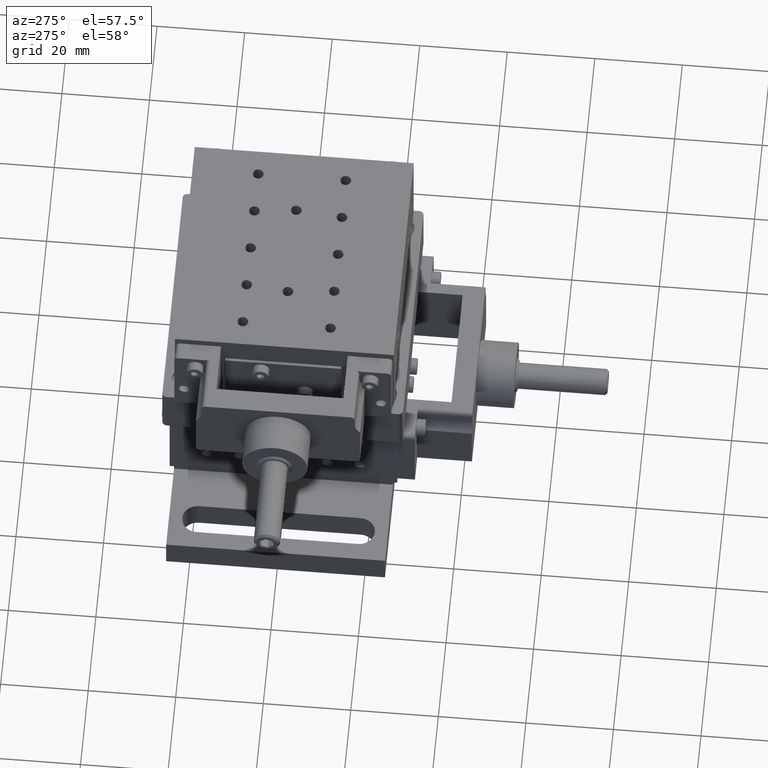
[diagram: clean part render]
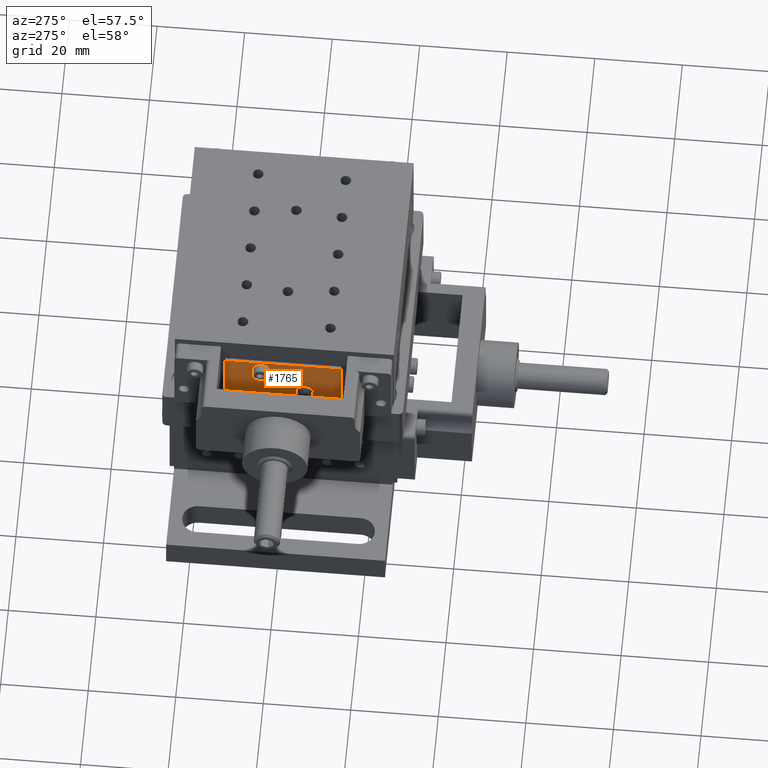
[diagram: same view with one face highlighted and labeled with its STEP entity id]
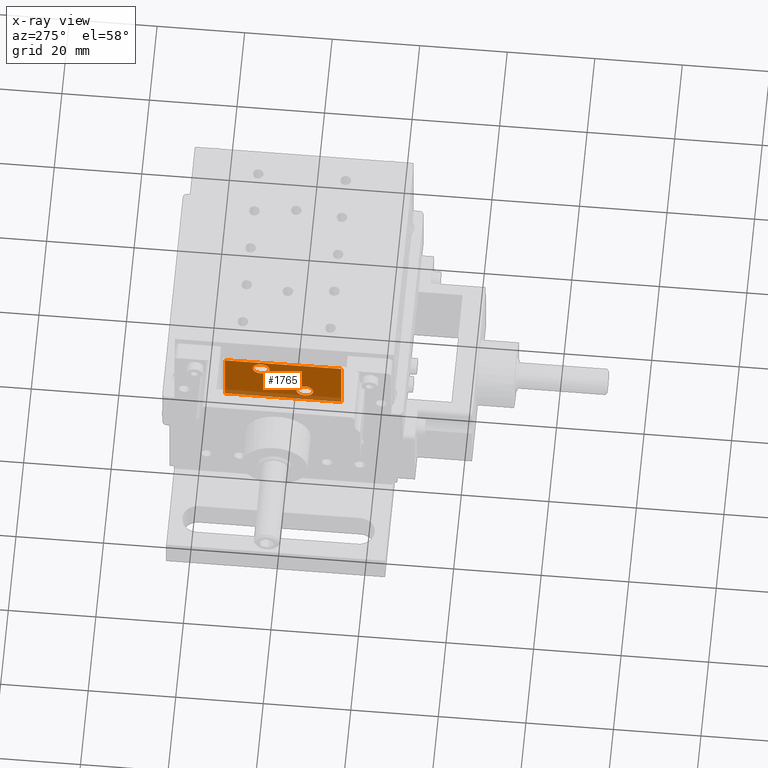
[diagram: x-ray of the same camera — body ghosted, the highlighted face saturated]
A machine part, auxiliary view. The second image highlights one B-rep face of the part: STEP entity #1765.
The next image is the same camera in x-ray: the body ghosted, the highlighted face saturated — about 12% of this face is hidden behind the body in this view.
In plain terms, the highlighted face is a freeform B-spline surface patch.
Its self-contained STEP definition (entity closure, byte-faithful):
#794=FACE_BOUND('',#4308,.T.);
#795=FACE_BOUND('',#4309,.T.);
#1765=ADVANCED_FACE('',(#2949,#794,#795),#38894,.T.);
#2949=FACE_OUTER_BOUND('',#4307,.T.);
#4307=EDGE_LOOP('',(#9261,#9262,#9263,#9264));
#4308=EDGE_LOOP('',(#9265,#9266));
#4309=EDGE_LOOP('',(#9267,#9268));
#9261=ORIENTED_EDGE('',*,*,#33991,.T.);
#9262=ORIENTED_EDGE('',*,*,#33992,.T.);
#9263=ORIENTED_EDGE('',*,*,#33993,.T.);
#9264=ORIENTED_EDGE('',*,*,#33994,.T.);
#9265=ORIENTED_EDGE('',*,*,#33036,.F.);
#9266=ORIENTED_EDGE('',*,*,#33038,.F.);
#9267=ORIENTED_EDGE('',*,*,#33995,.T.);
#9268=ORIENTED_EDGE('',*,*,#33996,.T.);
#13399=PCURVE('',#39221,#19178);
#13401=PCURVE('',#39222,#19180);
#15040=PCURVE('',#38894,#20819);
#15041=PCURVE('',#38894,#20820);
#15042=PCURVE('',#38894,#20821);
#15043=PCURVE('',#38894,#20822);
#15044=PCURVE('',#38894,#20823);
#15045=PCURVE('',#38894,#20824);
#15046=PCURVE('',#38894,#20825);
#15047=PCURVE('',#38894,#20826);
#15048=PCURVE('',#38895,#20827);
#15052=PCURVE('',#38896,#20831);
#15058=PCURVE('',#38897,#20837);
#15062=PCURVE('',#38898,#20841);
#15430=PCURVE('',#39476,#21209);
#15432=PCURVE('',#39477,#21211);
#19178=DEFINITIONAL_REPRESENTATION('',(#25449),#87459);
#19180=DEFINITIONAL_REPRESENTATION('',(#25452),#87459);
#20819=DEFINITIONAL_REPRESENTATION('',(#27432),#87459);
#20820=DEFINITIONAL_REPRESENTATION('',(#27434),#87459);
#20821=DEFINITIONAL_REPRESENTATION('',(#27436),#87459);
#20822=DEFINITIONAL_REPRESENTATION('',(#27438),#87459);
#20823=DEFINITIONAL_REPRESENTATION('',(#36107),#87459);
#20824=DEFINITIONAL_REPRESENTATION('',(#36108),#87459);
#20825=DEFINITIONAL_REPRESENTATION('',(#36110),#87459);
#20826=DEFINITIONAL_REPRESENTATION('',(#36112),#87459);
#20827=DEFINITIONAL_REPRESENTATION('',(#27439),#87459);
#20831=DEFINITIONAL_REPRESENTATION('',(#27446),#87459);
#20837=DEFINITIONAL_REPRESENTATION('',(#27455),#87459);
#20841=DEFINITIONAL_REPRESENTATION('',(#27461),#87459);
#21209=DEFINITIONAL_REPRESENTATION('',(#27821),#87459);
#21211=DEFINITIONAL_REPRESENTATION('',(#27824),#87459);
#25449=B_SPLINE_CURVE_WITH_KNOTS('',1,(#67852,#67853),.UNSPECIFIED.,.F.,
 .F.,(2,2),(-5.96902604182061,0.),.UNSPECIFIED.);
#25452=B_SPLINE_CURVE_WITH_KNOTS('',1,(#67863,#67864),.UNSPECIFIED.,.F.,
 .F.,(2,2),(-5.96902604182061,0.),.UNSPECIFIED.);
#27431=B_SPLINE_CURVE_WITH_KNOTS('',1,(#76391,#76392),.UNSPECIFIED.,.F.,
 .F.,(2,2),(-26.6,0.),.UNSPECIFIED.);
#27432=B_SPLINE_CURVE_WITH_KNOTS('',1,(#76393,#76394),.UNSPECIFIED.,.F.,
 .F.,(2,2),(-26.6,0.),.UNSPECIFIED.);
#27433=B_SPLINE_CURVE_WITH_KNOTS('',1,(#76395,#76396),.UNSPECIFIED.,.F.,
 .F.,(2,2),(-14.,0.),.UNSPECIFIED.);
#27434=B_SPLINE_CURVE_WITH_KNOTS('',1,(#76397,#76398),.UNSPECIFIED.,.F.,
 .F.,(2,2),(-14.,0.),.UNSPECIFIED.);
#27435=B_SPLINE_CURVE_WITH_KNOTS('',1,(#76399,#76400),.UNSPECIFIED.,.F.,
 .F.,(2,2),(-26.6,0.),.UNSPECIFIED.);
#27436=B_SPLINE_CURVE_WITH_KNOTS('',1,(#76401,#76402),.UNSPECIFIED.,.F.,
 .F.,(2,2),(-26.6,0.),.UNSPECIFIED.);
#27437=B_SPLINE_CURVE_WITH_KNOTS('',1,(#76403,#76404),.UNSPECIFIED.,.F.,
 .F.,(2,2),(-14.,0.),.UNSPECIFIED.);
#27438=B_SPLINE_CURVE_WITH_KNOTS('',1,(#76405,#76406),.UNSPECIFIED.,.F.,
 .F.,(2,2),(-14.,0.),.UNSPECIFIED.);
#27439=B_SPLINE_CURVE_WITH_KNOTS('',1,(#76437,#76438),.UNSPECIFIED.,.F.,
 .F.,(2,2),(-14.,0.),.UNSPECIFIED.);
#27446=B_SPLINE_CURVE_WITH_KNOTS('',1,(#76451,#76452),.UNSPECIFIED.,.F.,
 .F.,(2,2),(-26.6,0.),.UNSPECIFIED.);
#27455=B_SPLINE_CURVE_WITH_KNOTS('',1,(#76469,#76470),.UNSPECIFIED.,.F.,
 .F.,(2,2),(-14.,0.),.UNSPECIFIED.);
#27461=B_SPLINE_CURVE_WITH_KNOTS('',1,(#76481,#76482),.UNSPECIFIED.,.F.,
 .F.,(2,2),(-26.6,0.),.UNSPECIFIED.);
#27821=B_SPLINE_CURVE_WITH_KNOTS('',1,(#78031,#78032),.UNSPECIFIED.,.F.,
 .F.,(2,2),(0.,5.96902604182061),.UNSPECIFIED.);
#27824=B_SPLINE_CURVE_WITH_KNOTS('',1,(#78037,#78038),.UNSPECIFIED.,.F.,
 .F.,(2,2),(0.,5.96902604182061),.UNSPECIFIED.);
#30087=SURFACE_CURVE('',#35493,(#13399,#15044),.PCURVE_S1.);
#30089=SURFACE_CURVE('',#35494,(#13401,#15045),.PCURVE_S1.);
#31042=SURFACE_CURVE('',#27431,(#15040,#15062),.PCURVE_S1.);
#31043=SURFACE_CURVE('',#27433,(#15041,#15048),.PCURVE_S1.);
#31044=SURFACE_CURVE('',#27435,(#15042,#15052),.PCURVE_S1.);
#31045=SURFACE_CURVE('',#27437,(#15043,#15058),.PCURVE_S1.);
#31046=SURFACE_CURVE('',#36109,(#15046,#15430),.PCURVE_S1.);
#31047=SURFACE_CURVE('',#36111,(#15047,#15432),.PCURVE_S1.);
#33036=EDGE_CURVE('',#37576,#37575,#30087,.T.);
#33038=EDGE_CURVE('',#37575,#37576,#30089,.T.);
#33991=EDGE_CURVE('',#38150,#38151,#31042,.T.);
#33992=EDGE_CURVE('',#38151,#38152,#31043,.T.);
#33993=EDGE_CURVE('',#38152,#38153,#31044,.T.);
#33994=EDGE_CURVE('',#38153,#38150,#31045,.T.);
#33995=EDGE_CURVE('',#38155,#38154,#31046,.T.);
#33996=EDGE_CURVE('',#38154,#38155,#31047,.T.);
#35493=(
BOUNDED_CURVE()
B_SPLINE_CURVE(2,(#67847,#67848,#67849,#67850,#67851),.UNSPECIFIED.,.F.,
 .F.)
B_SPLINE_CURVE_WITH_KNOTS((3,2,3),(-5.96902604182061,-2.9845130209103,0.),
 .UNSPECIFIED.)
CURVE()
GEOMETRIC_REPRESENTATION_ITEM()
RATIONAL_B_SPLINE_CURVE((1.,0.707106781186548,1.,0.707106781186548,1.))
REPRESENTATION_ITEM('')
);
#35494=(
BOUNDED_CURVE()
B_SPLINE_CURVE(2,(#67858,#67859,#67860,#67861,#67862),.UNSPECIFIED.,.F.,
 .F.)
B_SPLINE_CURVE_WITH_KNOTS((3,2,3),(-5.96902604182061,-2.9845130209103,0.),
 .UNSPECIFIED.)
CURVE()
GEOMETRIC_REPRESENTATION_ITEM()
RATIONAL_B_SPLINE_CURVE((1.,0.707106781186548,1.,0.707106781186548,1.))
REPRESENTATION_ITEM('')
);
#36107=(
BOUNDED_CURVE()
B_SPLINE_CURVE(2,(#76407,#76408,#76409,#76410,#76411),.UNSPECIFIED.,.F.,
 .F.)
B_SPLINE_CURVE_WITH_KNOTS((3,2,3),(-5.96902604182061,-2.9845130209103,0.),
 .UNSPECIFIED.)
CURVE()
GEOMETRIC_REPRESENTATION_ITEM()
RATIONAL_B_SPLINE_CURVE((1.,0.707106781186548,1.,0.707106781186548,1.))
REPRESENTATION_ITEM('')
);
#36108=(
BOUNDED_CURVE()
B_SPLINE_CURVE(2,(#76412,#76413,#76414,#76415,#76416),.UNSPECIFIED.,.F.,
 .F.)
B_SPLINE_CURVE_WITH_KNOTS((3,2,3),(-5.96902604182061,-2.9845130209103,0.),
 .UNSPECIFIED.)
CURVE()
GEOMETRIC_REPRESENTATION_ITEM()
RATIONAL_B_SPLINE_CURVE((1.,0.707106781186548,1.,0.707106781186548,1.))
REPRESENTATION_ITEM('')
);
#36109=(
BOUNDED_CURVE()
B_SPLINE_CURVE(2,(#76417,#76418,#76419,#76420,#76421),.UNSPECIFIED.,.F.,
 .F.)
B_SPLINE_CURVE_WITH_KNOTS((3,2,3),(0.,2.9845130209103,5.96902604182061),
 .UNSPECIFIED.)
CURVE()
GEOMETRIC_REPRESENTATION_ITEM()
RATIONAL_B_SPLINE_CURVE((1.,0.707106781186548,1.,0.707106781186548,1.))
REPRESENTATION_ITEM('')
);
#36110=(
BOUNDED_CURVE()
B_SPLINE_CURVE(2,(#76422,#76423,#76424,#76425,#76426),.UNSPECIFIED.,.F.,
 .F.)
B_SPLINE_CURVE_WITH_KNOTS((3,2,3),(0.,2.9845130209103,5.96902604182061),
 .UNSPECIFIED.)
CURVE()
GEOMETRIC_REPRESENTATION_ITEM()
RATIONAL_B_SPLINE_CURVE((1.,0.707106781186548,1.,0.707106781186548,1.))
REPRESENTATION_ITEM('')
);
#36111=(
BOUNDED_CURVE()
B_SPLINE_CURVE(2,(#76427,#76428,#76429,#76430,#76431),.UNSPECIFIED.,.F.,
 .F.)
B_SPLINE_CURVE_WITH_KNOTS((3,2,3),(0.,2.9845130209103,5.96902604182061),
 .UNSPECIFIED.)
CURVE()
GEOMETRIC_REPRESENTATION_ITEM()
RATIONAL_B_SPLINE_CURVE((1.,0.707106781186548,1.,0.707106781186548,1.))
REPRESENTATION_ITEM('')
);
#36112=(
BOUNDED_CURVE()
B_SPLINE_CURVE(2,(#76432,#76433,#76434,#76435,#76436),.UNSPECIFIED.,.F.,
 .F.)
B_SPLINE_CURVE_WITH_KNOTS((3,2,3),(0.,2.9845130209103,5.96902604182061),
 .UNSPECIFIED.)
CURVE()
GEOMETRIC_REPRESENTATION_ITEM()
RATIONAL_B_SPLINE_CURVE((1.,0.707106781186548,1.,0.707106781186548,1.))
REPRESENTATION_ITEM('')
);
#37575=VERTEX_POINT('',#67060);
#37576=VERTEX_POINT('',#67061);
#38150=VERTEX_POINT('',#67635);
#38151=VERTEX_POINT('',#67636);
#38152=VERTEX_POINT('',#67637);
#38153=VERTEX_POINT('',#67638);
#38154=VERTEX_POINT('',#67639);
#38155=VERTEX_POINT('',#67640);
#38894=B_SPLINE_SURFACE_WITH_KNOTS('',1,1,((#65351,#65352),(#65353,#65354)),
 .UNSPECIFIED.,.F.,.F.,.F.,(2,2),(2,2),(-16.08,16.08),(-8.52000000000001,
8.52000000000001),.UNSPECIFIED.);
#38895=B_SPLINE_SURFACE_WITH_KNOTS('',1,1,((#65355,#65356),(#65357,#65358)),
 .UNSPECIFIED.,.F.,.F.,.F.,(2,2),(2,2),(-0.220000000000008,1.22),(-1.52,
15.52),.UNSPECIFIED.);
#38896=B_SPLINE_SURFACE_WITH_KNOTS('',1,1,((#65359,#65360),(#65361,#65362)),
 .UNSPECIFIED.,.F.,.F.,.F.,(2,2),(2,2),(-1.22000000000011,0.220000000000045),
(-29.38,2.78),.UNSPECIFIED.);
#38897=B_SPLINE_SURFACE_WITH_KNOTS('',1,1,((#65363,#65364),(#65365,#65366)),
 .UNSPECIFIED.,.F.,.F.,.F.,(2,2),(2,2),(-1.22000000000001,0.220000000000002),
(-15.52,1.52),.UNSPECIFIED.);
#38898=B_SPLINE_SURFACE_WITH_KNOTS('',1,1,((#65367,#65368),(#65369,#65370)),
 .UNSPECIFIED.,.F.,.F.,.F.,(2,2),(2,2),(-0.220000000000114,1.22000000000005),
(-2.78,29.38),.UNSPECIFIED.);
#39221=(
BOUNDED_SURFACE()
B_SPLINE_SURFACE(2,1,((#61591,#61592),(#61593,#61594),(#61595,#61596),(#61597,
#61598),(#61599,#61600),(#61601,#61602),(#61603,#61604),(#61605,#61606),
(#61607,#61608)),.UNSPECIFIED.,.T.,.F.,.F.)
B_SPLINE_SURFACE_WITH_KNOTS((3,2,2,2,3),(2,2),(0.,1.5707963267949,3.14159265358979,
4.71238898038469,6.28318530717959),(0.,2.40000000000003),.UNSPECIFIED.)
GEOMETRIC_REPRESENTATION_ITEM()
RATIONAL_B_SPLINE_SURFACE(((1.,1.),(0.707106781186548,0.707106781186548),
(1.,1.),(0.707106781186548,0.707106781186548),(1.,1.),(0.707106781186548,
0.707106781186548),(1.,1.),(0.707106781186548,0.707106781186548),(1.,1.)))
REPRESENTATION_ITEM('')
SURFACE()
);
#39222=(
BOUNDED_SURFACE()
B_SPLINE_SURFACE(2,1,((#61609,#61610),(#61611,#61612),(#61613,#61614),(#61615,
#61616),(#61617,#61618),(#61619,#61620),(#61621,#61622),(#61623,#61624),
(#61625,#61626)),.UNSPECIFIED.,.T.,.F.,.F.)
B_SPLINE_SURFACE_WITH_KNOTS((3,2,2,2,3),(2,2),(0.,1.5707963267949,3.14159265358979,
4.71238898038469,6.28318530717959),(0.,2.40000000000003),.UNSPECIFIED.)
GEOMETRIC_REPRESENTATION_ITEM()
RATIONAL_B_SPLINE_SURFACE(((1.,1.),(0.707106781186548,0.707106781186548),
(1.,1.),(0.707106781186548,0.707106781186548),(1.,1.),(0.707106781186548,
0.707106781186548),(1.,1.),(0.707106781186548,0.707106781186548),(1.,1.)))
REPRESENTATION_ITEM('')
SURFACE()
);
#39476=(
BOUNDED_SURFACE()
B_SPLINE_SURFACE(2,1,((#66609,#66610),(#66611,#66612),(#66613,#66614),(#66615,
#66616),(#66617,#66618),(#66619,#66620),(#66621,#66622),(#66623,#66624),
(#66625,#66626)),.UNSPECIFIED.,.T.,.F.,.F.)
B_SPLINE_SURFACE_WITH_KNOTS((3,2,2,2,3),(2,2),(0.,1.5707963267949,3.14159265358979,
4.71238898038469,6.28318530717959),(0.,2.40000000000061),.UNSPECIFIED.)
GEOMETRIC_REPRESENTATION_ITEM()
RATIONAL_B_SPLINE_SURFACE(((1.,1.),(0.707106781186548,0.707106781186548),
(1.,1.),(0.707106781186548,0.707106781186548),(1.,1.),(0.707106781186548,
0.707106781186548),(1.,1.),(0.707106781186548,0.707106781186548),(1.,1.)))
REPRESENTATION_ITEM('')
SURFACE()
);
#39477=(
BOUNDED_SURFACE()
B_SPLINE_SURFACE(2,1,((#66627,#66628),(#66629,#66630),(#66631,#66632),(#66633,
#66634),(#66635,#66636),(#66637,#66638),(#66639,#66640),(#66641,#66642),
(#66643,#66644)),.UNSPECIFIED.,.T.,.F.,.F.)
B_SPLINE_SURFACE_WITH_KNOTS((3,2,2,2,3),(2,2),(0.,1.5707963267949,3.14159265358979,
4.71238898038469,6.28318530717959),(0.,2.40000000000061),.UNSPECIFIED.)
GEOMETRIC_REPRESENTATION_ITEM()
RATIONAL_B_SPLINE_SURFACE(((1.,1.),(0.707106781186548,0.707106781186548),
(1.,1.),(0.707106781186548,0.707106781186548),(1.,1.),(0.707106781186548,
0.707106781186548),(1.,1.),(0.707106781186548,0.707106781186548),(1.,1.)))
REPRESENTATION_ITEM('')
SURFACE()
);
#61591=CARTESIAN_POINT('',(-28.0164528104949,3.32607756823776,54.5190559995546));
#61592=CARTESIAN_POINT('',(-25.6164528104949,3.32607756823775,54.5190559995546));
#61593=CARTESIAN_POINT('',(-28.0164528104949,3.32607756823776,52.6190559995546));
#61594=CARTESIAN_POINT('',(-25.6164528104949,3.32607756823775,52.6190559995546));
#61595=CARTESIAN_POINT('',(-28.0164528104949,5.22607756823776,52.6190559995546));
#61596=CARTESIAN_POINT('',(-25.6164528104949,5.22607756823775,52.6190559995546));
#61597=CARTESIAN_POINT('',(-28.0164528104949,7.12607756823776,52.6190559995546));
#61598=CARTESIAN_POINT('',(-25.6164528104949,7.12607756823775,52.6190559995546));
#61599=CARTESIAN_POINT('',(-28.0164528104949,7.12607756823776,54.5190559995546));
#61600=CARTESIAN_POINT('',(-25.6164528104949,7.12607756823775,54.5190559995546));
#61601=CARTESIAN_POINT('',(-28.0164528104949,7.12607756823776,56.4190559995546));
#61602=CARTESIAN_POINT('',(-25.6164528104949,7.12607756823775,56.4190559995546));
#61603=CARTESIAN_POINT('',(-28.0164528104949,5.22607756823776,56.4190559995546));
#61604=CARTESIAN_POINT('',(-25.6164528104949,5.22607756823775,56.4190559995546));
#61605=CARTESIAN_POINT('',(-28.0164528104949,3.32607756823776,56.4190559995546));
#61606=CARTESIAN_POINT('',(-25.6164528104949,3.32607756823775,56.4190559995546));
#61607=CARTESIAN_POINT('',(-28.0164528104949,3.32607756823776,54.5190559995546));
#61608=CARTESIAN_POINT('',(-25.6164528104949,3.32607756823775,54.5190559995546));
#61609=CARTESIAN_POINT('',(-28.0164528104949,3.32607756823776,54.5190559995546));
#61610=CARTESIAN_POINT('',(-25.6164528104949,3.32607756823775,54.5190559995546));
#61611=CARTESIAN_POINT('',(-28.0164528104949,3.32607756823776,52.6190559995546));
#61612=CARTESIAN_POINT('',(-25.6164528104949,3.32607756823775,52.6190559995546));
#61613=CARTESIAN_POINT('',(-28.0164528104949,5.22607756823776,52.6190559995546));
#61614=CARTESIAN_POINT('',(-25.6164528104949,5.22607756823775,52.6190559995546));
#61615=CARTESIAN_POINT('',(-28.0164528104949,7.12607756823776,52.6190559995546));
#61616=CARTESIAN_POINT('',(-25.6164528104949,7.12607756823775,52.6190559995546));
#61617=CARTESIAN_POINT('',(-28.0164528104949,7.12607756823776,54.5190559995546));
#61618=CARTESIAN_POINT('',(-25.6164528104949,7.12607756823775,54.5190559995546));
#61619=CARTESIAN_POINT('',(-28.0164528104949,7.12607756823776,56.4190559995546));
#61620=CARTESIAN_POINT('',(-25.6164528104949,7.12607756823775,56.4190559995546));
#61621=CARTESIAN_POINT('',(-28.0164528104949,5.22607756823776,56.4190559995546));
#61622=CARTESIAN_POINT('',(-25.6164528104949,5.22607756823775,56.4190559995546));
#61623=CARTESIAN_POINT('',(-28.0164528104949,3.32607756823776,56.4190559995546));
#61624=CARTESIAN_POINT('',(-25.6164528104949,3.32607756823775,56.4190559995546));
#61625=CARTESIAN_POINT('',(-28.0164528104949,3.32607756823776,54.5190559995546));
#61626=CARTESIAN_POINT('',(-25.6164528104949,3.32607756823775,54.5190559995546));
#65351=CARTESIAN_POINT('',(-25.9164528104949,-15.8539224317623,58.5390559995546));
#65352=CARTESIAN_POINT('',(-25.9164528104949,-15.8539224317622,41.4990559995546));
#65353=CARTESIAN_POINT('',(-25.9164528104949,16.3060775682378,58.5390559995546));
#65354=CARTESIAN_POINT('',(-25.9164528104949,16.3060775682378,41.4990559995546));
#65355=CARTESIAN_POINT('',(-24.696452810495,-13.0739224317622,58.5390559995546));
#65356=CARTESIAN_POINT('',(-24.696452810495,-13.0739224317622,41.4990559995546));
#65357=CARTESIAN_POINT('',(-26.136452810495,-13.0739224317622,58.5390559995546));
#65358=CARTESIAN_POINT('',(-26.136452810495,-13.0739224317622,41.4990559995546));
#65359=CARTESIAN_POINT('',(-26.1364528104951,-15.8539224317622,57.0190559995546));
#65360=CARTESIAN_POINT('',(-26.136452810495,16.3060775682377,57.0190559995546));
#65361=CARTESIAN_POINT('',(-24.6964528104949,-15.8539224317622,57.0190559995546));
#65362=CARTESIAN_POINT('',(-24.6964528104949,16.3060775682377,57.0190559995546));
#65363=CARTESIAN_POINT('',(-26.1364528104949,13.5260775682377,58.5390559995546));
#65364=CARTESIAN_POINT('',(-26.1364528104949,13.5260775682378,41.4990559995546));
#65365=CARTESIAN_POINT('',(-24.6964528104949,13.5260775682377,58.5390559995546));
#65366=CARTESIAN_POINT('',(-24.6964528104949,13.5260775682378,41.4990559995546));
#65367=CARTESIAN_POINT('',(-24.6964528104949,-15.8539224317622,43.0190559995546));
#65368=CARTESIAN_POINT('',(-24.6964528104949,16.3060775682378,43.0190559995546));
#65369=CARTESIAN_POINT('',(-26.1364528104951,-15.8539224317622,43.0190559995546));
#65370=CARTESIAN_POINT('',(-26.136452810495,16.3060775682378,43.0190559995546));
#66609=CARTESIAN_POINT('',(-28.0164528104955,-6.67392243176145,46.5190559995517));
#66610=CARTESIAN_POINT('',(-25.6164528104948,-6.67392243176145,46.5190559995517));
#66611=CARTESIAN_POINT('',(-28.0164528104955,-6.67392243176145,44.6190559995517));
#66612=CARTESIAN_POINT('',(-25.6164528104948,-6.67392243176145,44.6190559995517));
#66613=CARTESIAN_POINT('',(-28.0164528104955,-4.77392243176145,44.6190559995517));
#66614=CARTESIAN_POINT('',(-25.6164528104948,-4.77392243176145,44.6190559995517));
#66615=CARTESIAN_POINT('',(-28.0164528104955,-2.87392243176145,44.6190559995517));
#66616=CARTESIAN_POINT('',(-25.6164528104948,-2.87392243176145,44.6190559995517));
#66617=CARTESIAN_POINT('',(-28.0164528104955,-2.87392243176145,46.5190559995517));
#66618=CARTESIAN_POINT('',(-25.6164528104948,-2.87392243176145,46.5190559995517));
#66619=CARTESIAN_POINT('',(-28.0164528104955,-2.87392243176145,48.4190559995517));
#66620=CARTESIAN_POINT('',(-25.6164528104948,-2.87392243176145,48.4190559995517));
#66621=CARTESIAN_POINT('',(-28.0164528104955,-4.77392243176145,48.4190559995517));
#66622=CARTESIAN_POINT('',(-25.6164528104948,-4.77392243176145,48.4190559995517));
#66623=CARTESIAN_POINT('',(-28.0164528104955,-6.67392243176145,48.4190559995517));
#66624=CARTESIAN_POINT('',(-25.6164528104948,-6.67392243176145,48.4190559995517));
#66625=CARTESIAN_POINT('',(-28.0164528104955,-6.67392243176145,46.5190559995517));
#66626=CARTESIAN_POINT('',(-25.6164528104948,-6.67392243176145,46.5190559995517));
#66627=CARTESIAN_POINT('',(-28.0164528104955,-6.67392243176145,46.5190559995517));
#66628=CARTESIAN_POINT('',(-25.6164528104948,-6.67392243176145,46.5190559995517));
#66629=CARTESIAN_POINT('',(-28.0164528104955,-6.67392243176145,44.6190559995517));
#66630=CARTESIAN_POINT('',(-25.6164528104948,-6.67392243176145,44.6190559995517));
#66631=CARTESIAN_POINT('',(-28.0164528104955,-4.77392243176145,44.6190559995517));
#66632=CARTESIAN_POINT('',(-25.6164528104948,-4.77392243176145,44.6190559995517));
#66633=CARTESIAN_POINT('',(-28.0164528104955,-2.87392243176145,44.6190559995517));
#66634=CARTESIAN_POINT('',(-25.6164528104948,-2.87392243176145,44.6190559995517));
#66635=CARTESIAN_POINT('',(-28.0164528104955,-2.87392243176145,46.5190559995517));
#66636=CARTESIAN_POINT('',(-25.6164528104948,-2.87392243176145,46.5190559995517));
#66637=CARTESIAN_POINT('',(-28.0164528104955,-2.87392243176145,48.4190559995517));
#66638=CARTESIAN_POINT('',(-25.6164528104948,-2.87392243176145,48.4190559995517));
#66639=CARTESIAN_POINT('',(-28.0164528104955,-4.77392243176145,48.4190559995517));
#66640=CARTESIAN_POINT('',(-25.6164528104948,-4.77392243176145,48.4190559995517));
#66641=CARTESIAN_POINT('',(-28.0164528104955,-6.67392243176145,48.4190559995517));
#66642=CARTESIAN_POINT('',(-25.6164528104948,-6.67392243176145,48.4190559995517));
#66643=CARTESIAN_POINT('',(-28.0164528104955,-6.67392243176145,46.5190559995517));
#66644=CARTESIAN_POINT('',(-25.6164528104948,-6.67392243176145,46.5190559995517));
#67060=CARTESIAN_POINT('',(-25.9164528104949,7.12607756823775,54.5190559995546));
#67061=CARTESIAN_POINT('',(-25.9164528104949,3.32607756823775,54.5190559995546));
#67635=CARTESIAN_POINT('',(-25.9164528104949,13.5260775682378,43.0190559995546));
#67636=CARTESIAN_POINT('',(-25.916452810495,-13.0739224317622,43.0190559995546));
#67637=CARTESIAN_POINT('',(-25.916452810495,-13.0739224317622,57.0190559995546));
#67638=CARTESIAN_POINT('',(-25.9164528104949,13.5260775682377,57.0190559995546));
#67639=CARTESIAN_POINT('',(-25.9164528104949,-6.67392243176145,46.5190559995517));
#67640=CARTESIAN_POINT('',(-25.9164528104949,-2.87392243176145,46.5190559995517));
#67847=CARTESIAN_POINT('',(-25.9164528104949,3.32607756823775,54.5190559995546));
#67848=CARTESIAN_POINT('',(-25.9164528104949,3.32607756823775,56.4190559995546));
#67849=CARTESIAN_POINT('',(-25.9164528104949,5.22607756823775,56.4190559995546));
#67850=CARTESIAN_POINT('',(-25.9164528104949,7.12607756823775,56.4190559995546));
#67851=CARTESIAN_POINT('',(-25.9164528104949,7.12607756823775,54.5190559995546));
#67852=CARTESIAN_POINT('',(6.28318530717959,2.10000000000003));
#67853=CARTESIAN_POINT('',(3.14159265358979,2.10000000000002));
#67858=CARTESIAN_POINT('',(-25.9164528104949,7.12607756823775,54.5190559995546));
#67859=CARTESIAN_POINT('',(-25.9164528104949,7.12607756823775,52.6190559995546));
#67860=CARTESIAN_POINT('',(-25.9164528104949,5.22607756823775,52.6190559995546));
#67861=CARTESIAN_POINT('',(-25.9164528104949,3.32607756823775,52.6190559995546));
#67862=CARTESIAN_POINT('',(-25.9164528104949,3.32607756823775,54.5190559995546));
#67863=CARTESIAN_POINT('',(3.14159265358979,2.10000000000002));
#67864=CARTESIAN_POINT('',(0.,2.10000000000003));
#76391=CARTESIAN_POINT('',(-25.9164528104949,13.5260775682378,43.0190559995546));
#76392=CARTESIAN_POINT('',(-25.916452810495,-13.0739224317622,43.0190559995546));
#76393=CARTESIAN_POINT('',(13.3,7.00000000000001));
#76394=CARTESIAN_POINT('',(-13.3,6.99999999999999));
#76395=CARTESIAN_POINT('',(-25.916452810495,-13.0739224317622,43.0190559995546));
#76396=CARTESIAN_POINT('',(-25.916452810495,-13.0739224317622,57.0190559995546));
#76397=CARTESIAN_POINT('',(-13.3,6.99999999999999));
#76398=CARTESIAN_POINT('',(-13.3,-7.00000000000001));
#76399=CARTESIAN_POINT('',(-25.916452810495,-13.0739224317622,57.0190559995546));
#76400=CARTESIAN_POINT('',(-25.9164528104949,13.5260775682377,57.0190559995546));
#76401=CARTESIAN_POINT('',(-13.3,-7.00000000000001));
#76402=CARTESIAN_POINT('',(13.3,-6.99999999999999));
#76403=CARTESIAN_POINT('',(-25.9164528104949,13.5260775682377,57.0190559995546));
#76404=CARTESIAN_POINT('',(-25.9164528104949,13.5260775682378,43.0190559995546));
#76405=CARTESIAN_POINT('',(13.3,-6.99999999999999));
#76406=CARTESIAN_POINT('',(13.3,7.00000000000001));
#76407=CARTESIAN_POINT('',(3.1,-4.5));
#76408=CARTESIAN_POINT('',(3.10000000000001,-6.4));
#76409=CARTESIAN_POINT('',(5.00000000000001,-6.39999999999999));
#76410=CARTESIAN_POINT('',(6.9,-6.4));
#76411=CARTESIAN_POINT('',(6.9,-4.5));
#76412=CARTESIAN_POINT('',(6.9,-4.5));
#76413=CARTESIAN_POINT('',(6.9,-2.59999999999999));
#76414=CARTESIAN_POINT('',(5.,-2.59999999999999));
#76415=CARTESIAN_POINT('',(3.1,-2.59999999999999));
#76416=CARTESIAN_POINT('',(3.1,-4.5));
#76417=CARTESIAN_POINT('',(-25.9164528104949,-2.87392243176145,46.5190559995517));
#76418=CARTESIAN_POINT('',(-25.9164528104949,-2.87392243176145,48.4190559995517));
#76419=CARTESIAN_POINT('',(-25.9164528104949,-4.77392243176145,48.4190559995517));
#76420=CARTESIAN_POINT('',(-25.9164528104949,-6.67392243176145,48.4190559995517));
#76421=CARTESIAN_POINT('',(-25.9164528104949,-6.67392243176145,46.5190559995517));
#76422=CARTESIAN_POINT('',(-3.0999999999992,3.5000000000029));
#76423=CARTESIAN_POINT('',(-3.0999999999992,1.60000000000291));
#76424=CARTESIAN_POINT('',(-4.9999999999992,1.60000000000291));
#76425=CARTESIAN_POINT('',(-6.8999999999992,1.60000000000291));
#76426=CARTESIAN_POINT('',(-6.8999999999992,3.5000000000029));
#76427=CARTESIAN_POINT('',(-25.9164528104949,-6.67392243176145,46.5190559995517));
#76428=CARTESIAN_POINT('',(-25.9164528104949,-6.67392243176145,44.6190559995517));
#76429=CARTESIAN_POINT('',(-25.9164528104949,-4.77392243176145,44.6190559995517));
#76430=CARTESIAN_POINT('',(-25.9164528104949,-2.87392243176145,44.6190559995517));
#76431=CARTESIAN_POINT('',(-25.9164528104949,-2.87392243176145,46.5190559995517));
#76432=CARTESIAN_POINT('',(-6.8999999999992,3.5000000000029));
#76433=CARTESIAN_POINT('',(-6.8999999999992,5.40000000000291));
#76434=CARTESIAN_POINT('',(-4.9999999999992,5.4000000000029));
#76435=CARTESIAN_POINT('',(-3.09999999999921,5.40000000000291));
#76436=CARTESIAN_POINT('',(-3.0999999999992,3.5000000000029));
#76437=CARTESIAN_POINT('',(0.999999999999995,14.));
#76438=CARTESIAN_POINT('',(1.,3.86601173313376E-16));
#76451=CARTESIAN_POINT('',(-1.00000000000007,-26.6));
#76452=CARTESIAN_POINT('',(-1.,-1.14973743810154E-15));
#76469=CARTESIAN_POINT('',(-1.00000000000001,-14.));
#76470=CARTESIAN_POINT('',(-1.,3.86601173313375E-16));
#76481=CARTESIAN_POINT('',(0.999999999999931,26.6));
#76482=CARTESIAN_POINT('',(1.,-1.14973743810154E-15));
#78031=CARTESIAN_POINT('',(3.14159265358979,2.10000000000056));
#78032=CARTESIAN_POINT('',(6.28318530717959,2.10000000000056));
#78037=CARTESIAN_POINT('',(0.,2.10000000000056));
#78038=CARTESIAN_POINT('',(3.14159265358979,2.10000000000056));
#87459=(
GEOMETRIC_REPRESENTATION_CONTEXT(2)
PARAMETRIC_REPRESENTATION_CONTEXT()
REPRESENTATION_CONTEXT('pspace','')
);